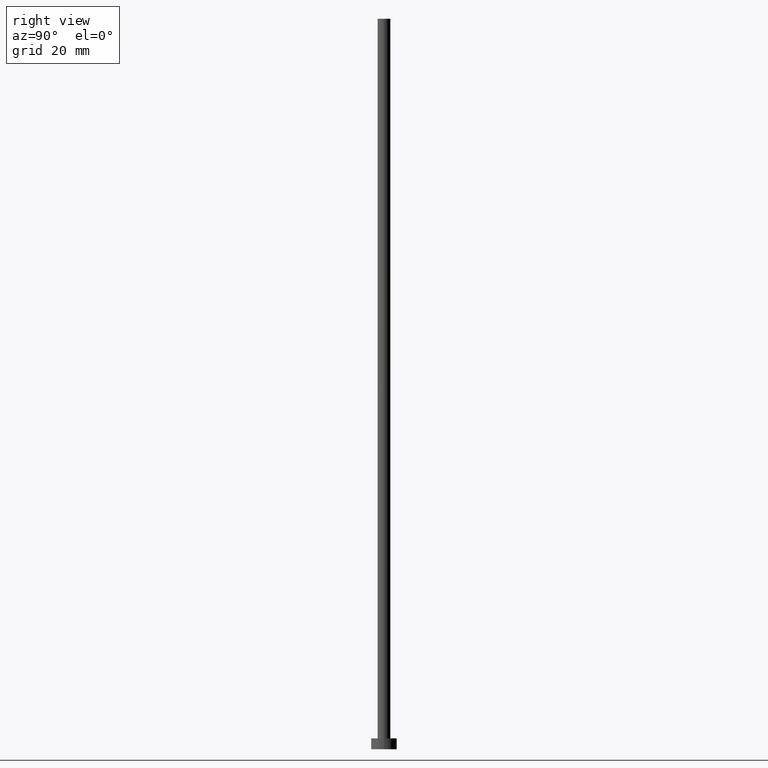
[diagram: clean part render]
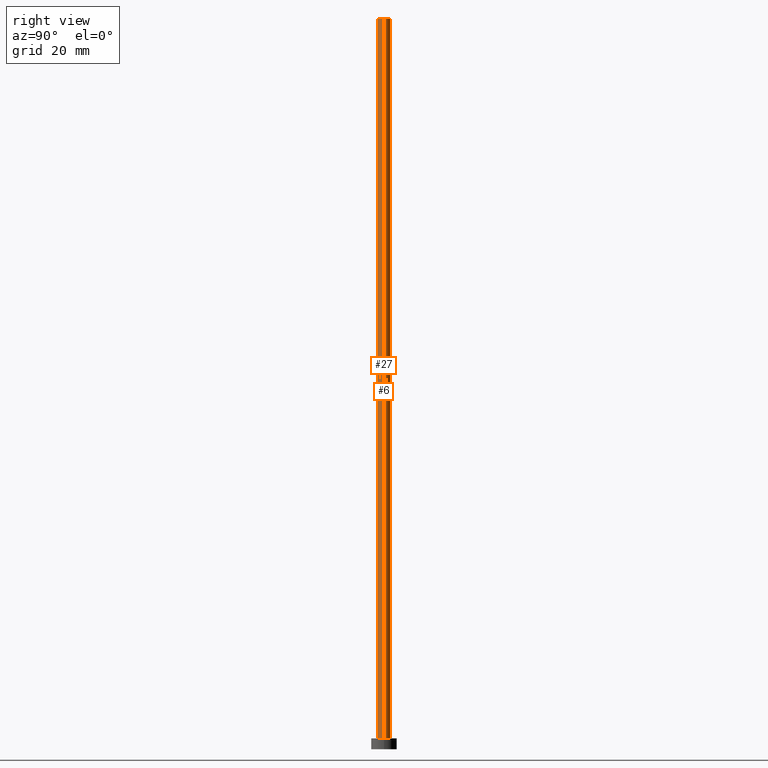
[diagram: same view with one multi-face feature highlighted, each face labeled with its STEP entity id]
A machine part, right view. The highlighted faces form ONE feature: a constant-radius fillet chain: 2 tangent blend faces with common blend radius 1.75 mm. The faces share edges in the B-rep.
Their STEP definitions:
[1] entity #27 (Cylinder):
#2 = DIRECTION ( 'NONE',  ( -0.000000000000000000, -0.000000000000000000, -1.000000000000000000 ) ) ;
#7 = CARTESIAN_POINT ( 'NONE',  ( -1.750000000000000000, 0.000000000000000000, 200.0000000000000000 ) ) ;
#9 = VERTEX_POINT ( 'NONE', #138 ) ;
#13 = DIRECTION ( 'NONE',  ( 1.000000000000000000, 0.000000000000000000, 0.000000000000000000 ) ) ;
#17 = CARTESIAN_POINT ( 'NONE',  ( 1.750000000000000000, 2.143131898507868297E-16, 200.0000000000000000 ) ) ;
#18 = CIRCLE ( 'NONE', #35, 1.750000000000000000 ) ;
#27 = ADVANCED_FACE ( 'NONE', ( #173 ), #52, .T. ) ;
#28 = CARTESIAN_POINT ( 'NONE',  ( -1.750000000000000000, 0.000000000000000000, 3.000000000000000000 ) ) ;
#30 = VECTOR ( 'NONE', #93, 1000.000000000000000 ) ;
#31 = CARTESIAN_POINT ( 'NONE',  ( 1.750000000000000000, 2.143131898507868297E-16, 3.000000000000000000 ) ) ;
#32 = CARTESIAN_POINT ( 'NONE',  ( -1.750000000000000000, 0.000000000000000000, 200.0000000000000000 ) ) ;
#35 = AXIS2_PLACEMENT_3D ( 'NONE', #133, #92, #13 ) ;
#47 = VERTEX_POINT ( 'NONE', #28 ) ;
#52 = CYLINDRICAL_SURFACE ( 'NONE', #230, 1.750000000000000000 ) ;
#61 = EDGE_CURVE ( 'NONE', #47, #150, #18, .T. ) ;
#62 = AXIS2_PLACEMENT_3D ( 'NONE', #245, #146, #168 ) ;
#65 = ORIENTED_EDGE ( 'NONE', *, *, #69, .F. ) ;
#69 = EDGE_CURVE ( 'NONE', #91, #9, #200, .T. ) ;
#70 = LINE ( 'NONE', #17, #30 ) ;
#86 = ORIENTED_EDGE ( 'NONE', *, *, #61, .T. ) ;
#90 = DIRECTION ( 'NONE',  ( -0.000000000000000000, -0.000000000000000000, -1.000000000000000000 ) ) ;
#91 = VERTEX_POINT ( 'NONE', #32 ) ;
#92 = DIRECTION ( 'NONE',  ( 0.000000000000000000, 0.000000000000000000, 1.000000000000000000 ) ) ;
#93 = DIRECTION ( 'NONE',  ( -0.000000000000000000, -0.000000000000000000, -1.000000000000000000 ) ) ;
#128 = EDGE_CURVE ( 'NONE', #91, #47, #203, .T. ) ;
#133 = CARTESIAN_POINT ( 'NONE',  ( 0.000000000000000000, 0.000000000000000000, 3.000000000000000000 ) ) ;
#138 = CARTESIAN_POINT ( 'NONE',  ( 1.750000000000000000, 2.143131898507868297E-16, 200.0000000000000000 ) ) ;
#141 = EDGE_CURVE ( 'NONE', #9, #150, #70, .T. ) ;
#146 = DIRECTION ( 'NONE',  ( 0.000000000000000000, 0.000000000000000000, 1.000000000000000000 ) ) ;
#150 = VERTEX_POINT ( 'NONE', #31 ) ;
#168 = DIRECTION ( 'NONE',  ( 1.000000000000000000, 0.000000000000000000, 0.000000000000000000 ) ) ;
#173 = FACE_OUTER_BOUND ( 'NONE', #190, .T. ) ;
#177 = DIRECTION ( 'NONE',  ( -1.000000000000000000, 0.000000000000000000, 0.000000000000000000 ) ) ;
#186 = ORIENTED_EDGE ( 'NONE', *, *, #141, .F. ) ;
#190 = EDGE_LOOP ( 'NONE', ( #186, #65, #250, #86 ) ) ;
#200 = CIRCLE ( 'NONE', #62, 1.750000000000000000 ) ;
#203 = LINE ( 'NONE', #7, #244 ) ;
#230 = AXIS2_PLACEMENT_3D ( 'NONE', #255, #2, #177 ) ;
#244 = VECTOR ( 'NONE', #90, 1000.000000000000000 ) ;
#245 = CARTESIAN_POINT ( 'NONE',  ( 0.000000000000000000, 0.000000000000000000, 200.0000000000000000 ) ) ;
#250 = ORIENTED_EDGE ( 'NONE', *, *, #128, .T. ) ;
#255 = CARTESIAN_POINT ( 'NONE',  ( 0.000000000000000000, 0.000000000000000000, 200.0000000000000000 ) ) ;
[2] entity #6 (Cylinder):
#6 = ADVANCED_FACE ( 'NONE', ( #221 ), #249, .T. ) ;
#7 = CARTESIAN_POINT ( 'NONE',  ( -1.750000000000000000, 0.000000000000000000, 200.0000000000000000 ) ) ;
#9 = VERTEX_POINT ( 'NONE', #138 ) ;
#17 = CARTESIAN_POINT ( 'NONE',  ( 1.750000000000000000, 2.143131898507868297E-16, 200.0000000000000000 ) ) ;
#19 = ORIENTED_EDGE ( 'NONE', *, *, #141, .T. ) ;
#28 = CARTESIAN_POINT ( 'NONE',  ( -1.750000000000000000, 0.000000000000000000, 3.000000000000000000 ) ) ;
#30 = VECTOR ( 'NONE', #93, 1000.000000000000000 ) ;
#31 = CARTESIAN_POINT ( 'NONE',  ( 1.750000000000000000, 2.143131898507868297E-16, 3.000000000000000000 ) ) ;
#32 = CARTESIAN_POINT ( 'NONE',  ( -1.750000000000000000, 0.000000000000000000, 200.0000000000000000 ) ) ;
#44 = CARTESIAN_POINT ( 'NONE',  ( 0.000000000000000000, 0.000000000000000000, 200.0000000000000000 ) ) ;
#45 = DIRECTION ( 'NONE',  ( 0.000000000000000000, 0.000000000000000000, 1.000000000000000000 ) ) ;
#47 = VERTEX_POINT ( 'NONE', #28 ) ;
#67 = DIRECTION ( 'NONE',  ( 1.000000000000000000, 0.000000000000000000, 0.000000000000000000 ) ) ;
#68 = CARTESIAN_POINT ( 'NONE',  ( 0.000000000000000000, 0.000000000000000000, 200.0000000000000000 ) ) ;
#70 = LINE ( 'NONE', #17, #30 ) ;
#72 = AXIS2_PLACEMENT_3D ( 'NONE', #68, #223, #131 ) ;
#73 = AXIS2_PLACEMENT_3D ( 'NONE', #44, #45, #198 ) ;
#90 = DIRECTION ( 'NONE',  ( -0.000000000000000000, -0.000000000000000000, -1.000000000000000000 ) ) ;
#91 = VERTEX_POINT ( 'NONE', #32 ) ;
#93 = DIRECTION ( 'NONE',  ( -0.000000000000000000, -0.000000000000000000, -1.000000000000000000 ) ) ;
#94 = ORIENTED_EDGE ( 'NONE', *, *, #155, .F. ) ;
#128 = EDGE_CURVE ( 'NONE', #91, #47, #203, .T. ) ;
#131 = DIRECTION ( 'NONE',  ( -1.000000000000000000, 0.000000000000000000, 0.000000000000000000 ) ) ;
#138 = CARTESIAN_POINT ( 'NONE',  ( 1.750000000000000000, 2.143131898507868297E-16, 200.0000000000000000 ) ) ;
#141 = EDGE_CURVE ( 'NONE', #9, #150, #70, .T. ) ;
#148 = EDGE_LOOP ( 'NONE', ( #94, #19, #199, #206 ) ) ;
#150 = VERTEX_POINT ( 'NONE', #31 ) ;
#155 = EDGE_CURVE ( 'NONE', #9, #91, #224, .T. ) ;
#159 = EDGE_CURVE ( 'NONE', #150, #47, #196, .T. ) ;
#180 = AXIS2_PLACEMENT_3D ( 'NONE', #185, #248, #67 ) ;
#185 = CARTESIAN_POINT ( 'NONE',  ( 0.000000000000000000, 0.000000000000000000, 3.000000000000000000 ) ) ;
#196 = CIRCLE ( 'NONE', #180, 1.750000000000000000 ) ;
#198 = DIRECTION ( 'NONE',  ( 1.000000000000000000, 0.000000000000000000, 0.000000000000000000 ) ) ;
#199 = ORIENTED_EDGE ( 'NONE', *, *, #159, .T. ) ;
#203 = LINE ( 'NONE', #7, #244 ) ;
#206 = ORIENTED_EDGE ( 'NONE', *, *, #128, .F. ) ;
#221 = FACE_OUTER_BOUND ( 'NONE', #148, .T. ) ;
#223 = DIRECTION ( 'NONE',  ( -0.000000000000000000, -0.000000000000000000, -1.000000000000000000 ) ) ;
#224 = CIRCLE ( 'NONE', #73, 1.750000000000000000 ) ;
#244 = VECTOR ( 'NONE', #90, 1000.000000000000000 ) ;
#248 = DIRECTION ( 'NONE',  ( 0.000000000000000000, 0.000000000000000000, 1.000000000000000000 ) ) ;
#249 = CYLINDRICAL_SURFACE ( 'NONE', #72, 1.750000000000000000 ) ;